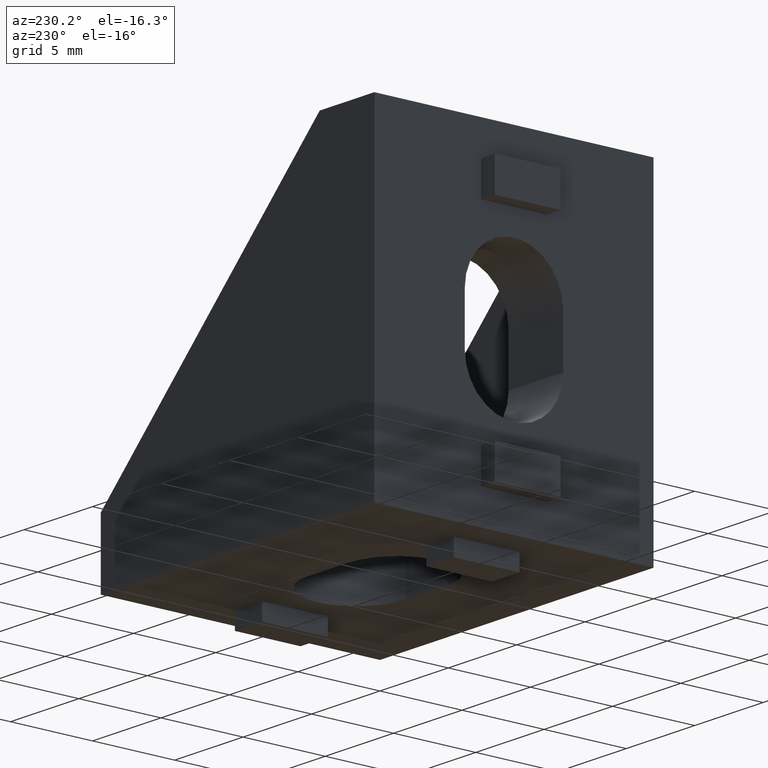
[diagram: clean part render]
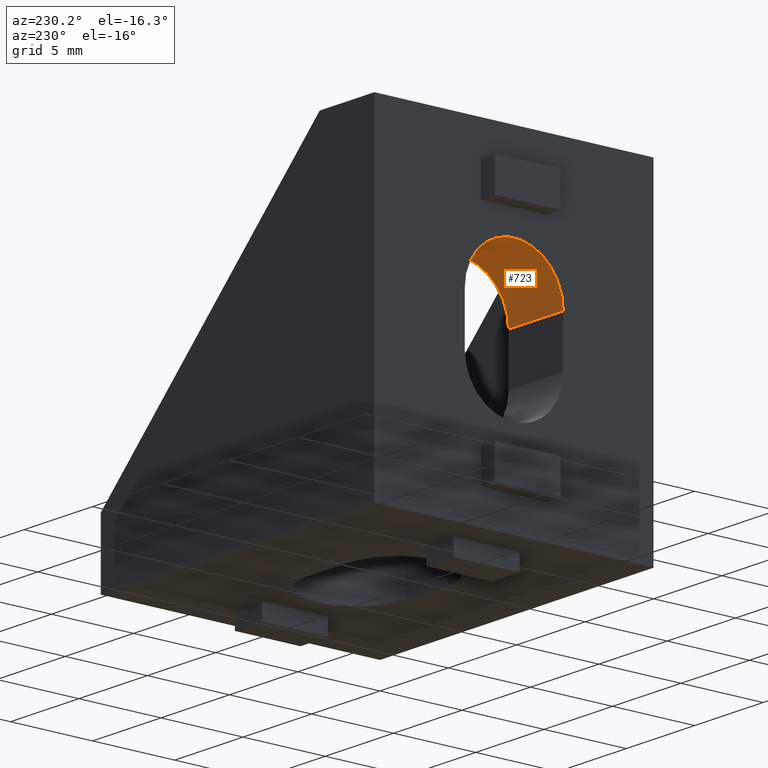
[diagram: same view with one face highlighted and labeled with its STEP entity id]
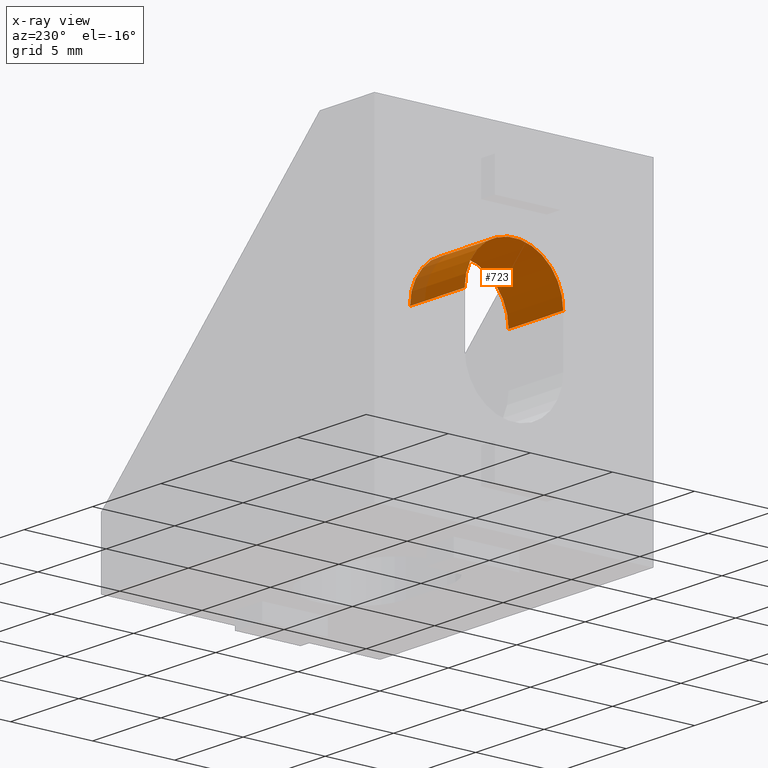
[diagram: x-ray of the same camera — body ghosted, the highlighted face saturated]
A machine part, auxiliary view. The second image highlights one B-rep face of the part: STEP entity #723.
The next image is the same camera in x-ray: the body ghosted, the highlighted face saturated — about 8% of this face is hidden behind the body in this view.
In plain terms, the highlighted cylindrical surface (partial cylindrical patch) has radius 3 mm, axis along (1, 0, 0).
Its self-contained STEP definition (entity closure, byte-faithful):
#29=CIRCLE('',#784,3.);
#30=CIRCLE('',#785,3.);
#34=CYLINDRICAL_SURFACE('',#783,3.);
#61=FACE_OUTER_BOUND('',#101,.T.);
#101=EDGE_LOOP('',(#569,#570,#571,#572));
#182=LINE('',#1125,#272);
#184=LINE('',#1131,#274);
#272=VECTOR('',#924,10.);
#274=VECTOR('',#930,10.);
#347=VERTEX_POINT('',#1122);
#348=VERTEX_POINT('',#1124);
#349=VERTEX_POINT('',#1128);
#350=VERTEX_POINT('',#1130);
#432=EDGE_CURVE('',#347,#348,#182,.T.);
#434=EDGE_CURVE('',#349,#347,#29,.T.);
#435=EDGE_CURVE('',#349,#350,#184,.T.);
#436=EDGE_CURVE('',#348,#350,#30,.T.);
#569=ORIENTED_EDGE('',*,*,#434,.F.);
#570=ORIENTED_EDGE('',*,*,#435,.T.);
#571=ORIENTED_EDGE('',*,*,#436,.F.);
#572=ORIENTED_EDGE('',*,*,#432,.F.);
#723=ADVANCED_FACE('',(#61),#34,.F.);
#783=AXIS2_PLACEMENT_3D('',#1127,#926,#927);
#784=AXIS2_PLACEMENT_3D('',#1129,#928,#929);
#785=AXIS2_PLACEMENT_3D('',#1132,#931,#932);
#924=DIRECTION('',(1.,0.,0.));
#926=DIRECTION('center_axis',(1.,0.,0.));
#927=DIRECTION('ref_axis',(0.,1.,0.));
#928=DIRECTION('center_axis',(1.,0.,0.));
#929=DIRECTION('ref_axis',(0.,1.,0.));
#930=DIRECTION('',(1.,0.,0.));
#931=DIRECTION('center_axis',(-1.,0.,0.));
#932=DIRECTION('ref_axis',(0.,1.,0.));
#1122=CARTESIAN_POINT('',(0.,5.5,11.5));
#1124=CARTESIAN_POINT('',(4.,5.5,11.5));
#1125=CARTESIAN_POINT('',(0.,5.5,11.5));
#1127=CARTESIAN_POINT('Origin',(0.,8.5,11.5));
#1128=CARTESIAN_POINT('',(0.,11.5,11.5));
#1129=CARTESIAN_POINT('Origin',(0.,8.5,11.5));
#1130=CARTESIAN_POINT('',(4.,11.5,11.5));
#1131=CARTESIAN_POINT('',(0.,11.5,11.5));
#1132=CARTESIAN_POINT('Origin',(4.,8.5,11.5));